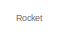
[diagram: root canvas - part 1/2, top left region]
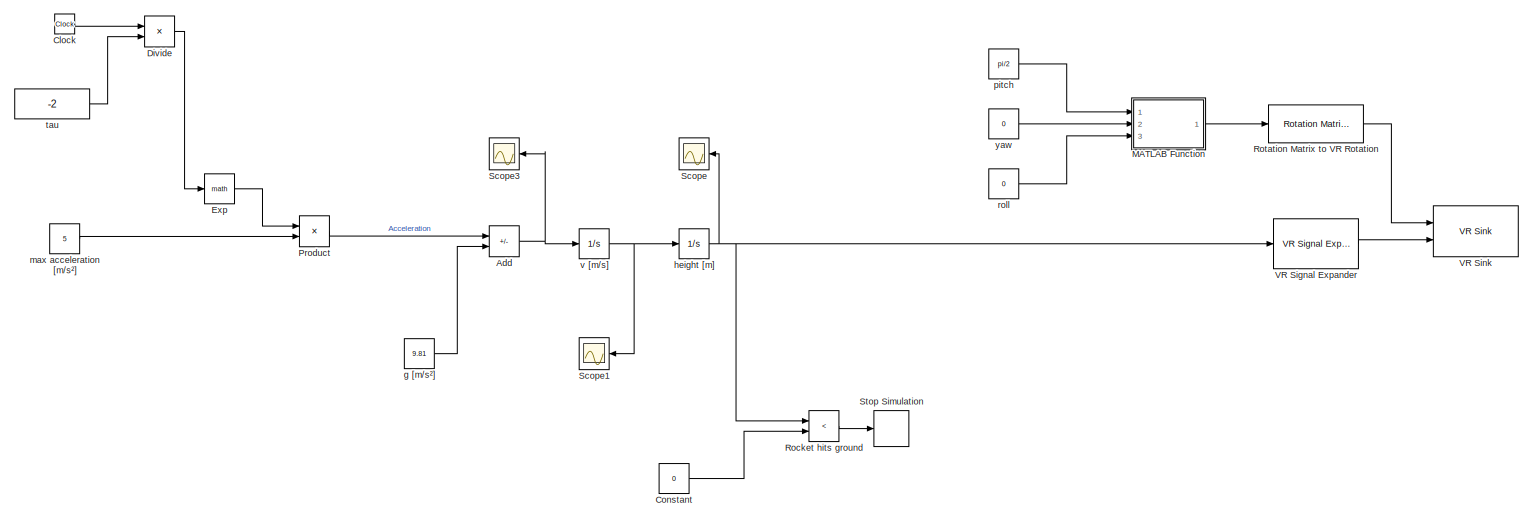
[diagram: root canvas - part 2/2, most of the canvas]
MODEL slx_ebef46d9e712
KIND model
CONFIG AbsTol = auto
CONFIG EnableMultiTasking = off
CONFIG FixedStep = auto
CONFIG MaxStep = auto
CONFIG MinStep = auto
CONFIG RelTol = 1e-3
CONFIG SampleTimeConstraint = Unconstrained
CONFIG SolverName = VariableStepAuto
CONFIG StartTime = 0.0
CONFIG StopTime = 60
BLOCK [Sum] Add
  IconShape = rectangular
  Inputs = +-
  Ports = [2, 1]
BLOCK [Clock] Clock
BLOCK [Constant] Constant
  Value = 0
BLOCK [Product] Divide
  Inputs = */
  Ports = [2, 1]
BLOCK [Math] Exp
  Ports = [1, 1]
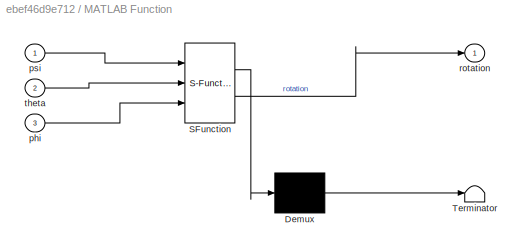
BLOCK [SubSystem] MATLAB Function
  ErrorFcn = Stateflow.Translate.translate
  PermitHierarchicalResolution = ExplicitOnly
  Ports = [3, 1]
  RequestExecContextInheritance = off
  SFBlockType = MATLAB Function
  TreatAsAtomicUnit = on
BLOCK [Demux] MATLAB Function/ Demux 
  Outputs = 1
  Ports = [1, 1]
BLOCK [S-Function] MATLAB Function/ SFunction 
  EnableBusSupport = on
  FunctionName = sf_sfun
  PortCounts = [3 2]
  Ports = [3, 2]
  SFcnIsStateOwnerBlock = off
  SFunctionDeploymentMode = off
  Tag = Stateflow S-Function 2
BLOCK [Terminator] MATLAB Function/ Terminator 
BLOCK [Inport] MATLAB Function/phi
  Port = 3
BLOCK [Inport] MATLAB Function/psi
BLOCK [Outport] MATLAB Function/rotation
BLOCK [Inport] MATLAB Function/theta
  Port = 2
BLOCK [Product] Product
  Ports = [2, 1]
BLOCK [RelationalOperator] Rocket hits ground
  InputSameDT = off
  Operator = <
  OutDataTypeStr = boolean
  Ports = [2, 1]
  RndMeth = Simplest
BLOCK [Reference] Rotation Matrix to VR Rotation  REF=vrlib/Utilities/Rotation Matrix
to VR Rotation
  Ports = [1, 1]
  SourceBlock = vrlib/Utilities/Rotation Matrix\nto VR Rotation
  SourceProductBaseCode = SL
  SourceType = Rotation Matrix to VR Rotation
BLOCK [Scope] Scope
  Floating = off
  NumInputPorts = 1
  Ports = [1]
  ScopeSpecificationString = Simulink.scopes.TimeScopeBlockCfg('CurrentConfiguration', extmgr.ConfigurationSet(extmgr.Configuration('Core','General UI',true),extmgr.Configuration('Core','Source UI',true),extmgr.Configuration('Sources','WiredSimulink',true),extmgr.Configuration('Visuals','Time Domain',true,'SerializedDisplays',{struct('MinYLimReal','-13.76901','MaxYLimReal','123.92112','YLabelReal','','MinYLimMag','0.00000','M...<+1398ch>
BLOCK [Scope] Scope1
  Floating = off
  NumInputPorts = 1
  Ports = [1]
  ScopeSpecificationString = Simulink.scopes.TimeScopeBlockCfg('CurrentConfiguration', extmgr.ConfigurationSet(extmgr.Configuration('Core','General UI',true),extmgr.Configuration('Core','Source UI',true),extmgr.Configuration('Sources','WiredSimulink',true,'DataLoggingVariableName','ScopeData1'),extmgr.Configuration('Visuals','Time Domain',true,'SerializedDisplays',{struct('MinYLimReal','-6.05229','MaxYLimReal','54.47064','YLa...<+1370ch>
BLOCK [Scope] Scope3
  Floating = off
  NumInputPorts = 1
  Ports = [1]
  ScopeSpecificationString = Simulink.scopes.TimeScopeBlockCfg('CurrentConfiguration', extmgr.ConfigurationSet(extmgr.Configuration('Core','General UI',true),extmgr.Configuration('Core','Source UI',true),extmgr.Configuration('Sources','WiredSimulink',true,'DataLoggingVariableName','ScopeData3'),extmgr.Configuration('Visuals','Time Domain',true,'SerializedDisplays',{struct('MinYLimReal','-4.70332','MaxYLimReal','45.17815','YLa...<+1366ch>
BLOCK [Stop] Stop Simulation
BLOCK [Reference] VR Signal Expander  REF=vrlib/VR Signal Expander
  Ports = [1, 1]
  SourceBlock = vrlib/VR Signal Expander
  SourceProductBaseCode = SL
  SourceType = VR Signal Expander
BLOCK [Reference] VR Sink  REF=vrlib/VR Sink
  InstantiateOnLoad = on
  Ports = [2]
  SourceBlock = vrlib/VR Sink
  SourceProductBaseCode = SL
  SourceType = Virtual Reality Sink
BLOCK [Constant] g [m//s²]
  Value = 9.81
BLOCK [Integrator] height [m]
  Ports = [1, 1]
BLOCK [Constant] max acceleration [m//s²]
  Value = 5
BLOCK [Constant] pitch
  Value = pi/2
BLOCK [Constant] roll
  Value = 0
BLOCK [Constant] tau
  Value = -2
BLOCK [Integrator] v [m//s]
  Ports = [1, 1]
BLOCK [Constant] yaw
  Value = 0
ANNOTATION (root): Rocket
NET Add:1 -> Scope3:1, v [m//s]:1
LINE Clock:1 -> Divide:1
LINE Constant:1 -> Rocket hits ground:2
LINE Divide:1 -> Exp:1
LINE Exp:1 -> Product:1
LINE MATLAB Function:1 -> Rotation Matrix to VR Rotation:1
LINE Product:1 -> Add:1
LINE Rocket hits ground:1 -> Stop Simulation:1
LINE Rotation Matrix to VR Rotation:1 -> VR Sink:1
LINE VR Signal Expander:1 -> VR Sink:2
LINE g [m//s²]:1 -> Add:2
NET height [m]:1 -> Rocket hits ground:1, Scope:1, VR Signal Expander:1
LINE max acceleration [m//s²]:1 -> Product:2
LINE pitch:1 -> MATLAB Function:1
LINE roll:1 -> MATLAB Function:3
LINE tau:1 -> Divide:2
NET v [m//s]:1 -> Scope1:1, height [m]:1
LINE yaw:1 -> MATLAB Function:2
note: NET lines group one-source signal fan-out (src -> all destinations, sorted); 1:1 wires keep LINE
CHART MATLAB Function states=1 transitions=1
  STATE_LABEL 'eML_blk_kernel()'
  STATE_LABEL 'SCRIPT:\nfunction rotation = fcn(psi,theta,phi)%yaw pitch roll\n\n%yaw matrix\nR3   = [ cos(psi) sin(psi) 0; \n             -sin(psi) cos(psi) 0; \n             0 0 1];\n%pitch matrix\nR2   = [cos(theta) 0 -sin(theta); \n        0  1           0; \n        sin(theta) 0  cos(theta)];\n%roll matrix         \nR1    = [1        0          0; \n         0  cos(phi)  sin(phi);\n         0 -sin(phi)  cos(phi)];\n      ...<+41ch>'
CHART  states=0 transitions=0
